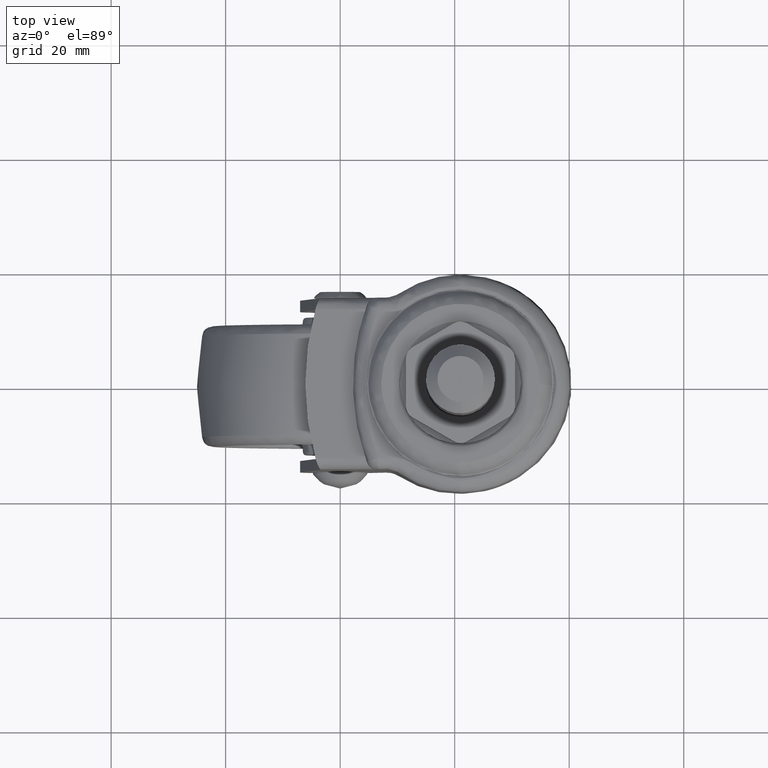
[diagram: clean part render]
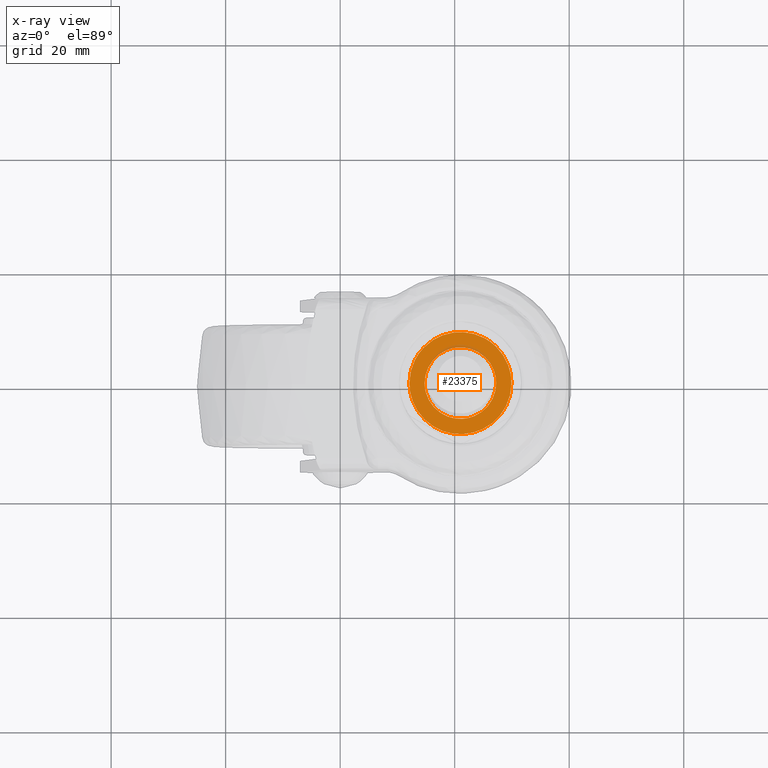
[diagram: x-ray — body ghosted, one internal face saturated and labeled with its STEP entity id]
A machine part, top view, then the same camera in x-ray: the body is ghosted and one INTERNAL B-rep face — a face not visible from any outside direction — is saturated and labeled: STEP entity #23375.
In plain terms, the highlighted face is a freeform B-spline surface patch.
Its self-contained STEP definition (entity closure, byte-faithful):
#20515=CARTESIAN_POINT('',(20.262285967287859,6.206309531915061,34.699997000000003));
#20516=VERTEX_POINT('',#20515);
#20522=CARTESIAN_POINT('',(27.250000000000000,1.421085E-014,34.699997000000003));
#20523=VERTEX_POINT('',#20522);
#20524=CARTESIAN_POINT('',(20.262285967287859,6.206309531915063,34.699996999999989));
#20525=CARTESIAN_POINT('',(20.629849185369281,6.250000000000014,34.699997000000003));
#20526=CARTESIAN_POINT('',(21.0,6.250000000000014,34.699997000000003));
#20527=CARTESIAN_POINT('',(27.250000000000000,6.250000000000014,34.699996999999996));
#20528=CARTESIAN_POINT('',(27.250000000000000,1.421085E-014,34.699997000000003));
#20536=(BOUNDED_CURVE()B_SPLINE_CURVE(2,(#20524,#20525,#20526,#20527,#20528),.UNSPECIFIED.,.F.,.U.)B_SPLINE_CURVE_WITH_KNOTS((3,2,3),(0.229562469915319,0.250000000000000,0.500000000000000),.UNSPECIFIED.)CURVE()GEOMETRIC_REPRESENTATION_ITEM()RATIONAL_B_SPLINE_CURVE((0.956026747131101,0.976055944115604,1.0,0.707106781186547,1.0))REPRESENTATION_ITEM(''));
#20537=EDGE_CURVE('',#20516,#20523,#20536,.T.);
#20539=CARTESIAN_POINT('',(21.381553372153260,-6.238342490132959,34.699997000000003));
#20540=VERTEX_POINT('',#20539);
#20541=CARTESIAN_POINT('',(27.250000000000000,1.421085E-014,34.699997000000003));
#20542=CARTESIAN_POINT('',(27.250000000000000,-5.879412918046532,34.699997000000010));
#20543=CARTESIAN_POINT('',(21.381553372153256,-6.238342490132960,34.699997000000010));
#20551=(BOUNDED_CURVE()B_SPLINE_CURVE(2,(#20541,#20542,#20543),.UNSPECIFIED.,.F.,.U.)B_SPLINE_CURVE_WITH_KNOTS((3,3),(0.500000000000000,0.739332962238628),.UNSPECIFIED.)CURVE()GEOMETRIC_REPRESENTATION_ITEM()RATIONAL_B_SPLINE_CURVE((1.0,0.719603993287080,0.976072041666042))REPRESENTATION_ITEM(''));
#20552=EDGE_CURVE('',#20523,#20540,#20551,.T.);
#20626=CARTESIAN_POINT('',(14.750000000000000,1.421085E-014,34.699997000000003));
#20627=VERTEX_POINT('',#20626);
#20628=CARTESIAN_POINT('',(21.381553372153267,-6.238342490132960,34.699997000000003));
#20629=CARTESIAN_POINT('',(21.190954770676754,-6.249999999999987,34.699997000000003));
#20630=CARTESIAN_POINT('',(21.0,-6.249999999999987,34.699997000000003));
#20631=CARTESIAN_POINT('',(14.750000000000007,-6.249999999999987,34.699996999999996));
#20632=CARTESIAN_POINT('',(14.750000000000000,1.421085E-014,34.699997000000003));
#20640=(BOUNDED_CURVE()B_SPLINE_CURVE(2,(#20628,#20629,#20630,#20631,#20632),.UNSPECIFIED.,.F.,.U.)B_SPLINE_CURVE_WITH_KNOTS((3,2,3),(0.739332962238627,0.750000000000000,1.0),.UNSPECIFIED.)CURVE()GEOMETRIC_REPRESENTATION_ITEM()RATIONAL_B_SPLINE_CURVE((0.976072041666040,0.987502787899467,1.0,0.707106781186547,1.0))REPRESENTATION_ITEM(''));
#20641=EDGE_CURVE('',#20540,#20627,#20640,.T.);
#20643=CARTESIAN_POINT('',(14.750000000000000,1.421085E-014,34.699997000000003));
#20644=CARTESIAN_POINT('',(14.750000000000009,5.551090668107082,34.699996999999996));
#20645=CARTESIAN_POINT('',(20.262285967287859,6.206309531915062,34.699996999999996));
#20653=(BOUNDED_CURVE()B_SPLINE_CURVE(2,(#20643,#20644,#20645),.UNSPECIFIED.,.F.,.U.)B_SPLINE_CURVE_WITH_KNOTS((3,3),(0.0,0.229562469915319),.UNSPECIFIED.)CURVE()GEOMETRIC_REPRESENTATION_ITEM()RATIONAL_B_SPLINE_CURVE((1.0,0.731050837070943,0.956026747131101))REPRESENTATION_ITEM(''));
#20654=EDGE_CURVE('',#20627,#20516,#20653,.T.);
#21185=CARTESIAN_POINT('',(14.580616412087281,6.181828213922753,34.699997000000003));
#21186=VERTEX_POINT('',#21185);
#21200=CARTESIAN_POINT('',(12.088014583038280,1.421085E-014,34.699997000000003));
#21201=VERTEX_POINT('',#21200);
#21202=CARTESIAN_POINT('',(12.088014583038280,1.421085E-014,34.699997000000003));
#21203=CARTESIAN_POINT('',(12.088014583038280,3.593440520229823,34.699997000000003));
#21204=CARTESIAN_POINT('',(14.580616412087274,6.181828213922753,34.699997000000010));
#21212=(BOUNDED_CURVE()B_SPLINE_CURVE(2,(#21202,#21203,#21204),.UNSPECIFIED.,.F.,.U.)B_SPLINE_CURVE_WITH_KNOTS((3,3),(0.0,0.122155737632389),.UNSPECIFIED.)CURVE()GEOMETRIC_REPRESENTATION_ITEM()RATIONAL_B_SPLINE_CURVE((1.0,0.856885651233272,0.853629213181573))REPRESENTATION_ITEM(''));
#21213=EDGE_CURVE('',#21201,#21186,#21212,.T.);
#21215=CARTESIAN_POINT('',(29.911985416961720,1.421085E-014,34.699997000000003));
#21216=VERTEX_POINT('',#21215);
#21217=CARTESIAN_POINT('',(29.911985416961720,1.421085E-014,34.699997000000003));
#21218=CARTESIAN_POINT('',(29.911985416961727,-8.911985416961707,34.699997000000003));
#21219=CARTESIAN_POINT('',(21.0,-8.911985416961706,34.699997000000003));
#21220=CARTESIAN_POINT('',(12.088014583038282,-8.911985416961707,34.699997000000003));
#21221=CARTESIAN_POINT('',(12.088014583038280,1.421085E-014,34.699997000000003));
#21229=(BOUNDED_CURVE()B_SPLINE_CURVE(2,(#21217,#21218,#21219,#21220,#21221),.UNSPECIFIED.,.F.,.U.)B_SPLINE_CURVE_WITH_KNOTS((3,2,3),(0.500000000000000,0.750000000000000,1.0),.UNSPECIFIED.)CURVE()GEOMETRIC_REPRESENTATION_ITEM()RATIONAL_B_SPLINE_CURVE((1.0,0.707106781186548,1.0,0.707106781186548,1.0))REPRESENTATION_ITEM(''));
#21230=EDGE_CURVE('',#21216,#21201,#21229,.T.);
#21232=CARTESIAN_POINT('',(27.181828213922739,6.419383587912737,34.699997000000010));
#21233=VERTEX_POINT('',#21232);
#21234=CARTESIAN_POINT('',(27.181828213922739,6.419383587912737,34.699997000000010));
#21235=CARTESIAN_POINT('',(29.911985416961720,3.790258308448786,34.699997000000003));
#21236=CARTESIAN_POINT('',(29.911985416961720,1.421085E-014,34.699997000000003));
#21244=(BOUNDED_CURVE()B_SPLINE_CURVE(2,(#21234,#21235,#21236),.UNSPECIFIED.,.F.,.U.)B_SPLINE_CURVE_WITH_KNOTS((3,3),(0.372155737632389,0.500000000000000),.UNSPECIFIED.)CURVE()GEOMETRIC_REPRESENTATION_ITEM()RATIONAL_B_SPLINE_CURVE((0.853629213181573,0.850221129953275,1.0))REPRESENTATION_ITEM(''));
#21245=EDGE_CURVE('',#21233,#21216,#21244,.T.);
#21282=CARTESIAN_POINT('',(14.580616412087284,6.181828213922752,34.699997000000003));
#21283=CARTESIAN_POINT('',(17.209741691551233,8.911985416961734,34.699997000000003));
#21284=CARTESIAN_POINT('',(21.0,8.911985416961734,34.699997000000003));
#21285=CARTESIAN_POINT('',(24.593440520229816,8.911985416961734,34.699996999999996));
#21286=CARTESIAN_POINT('',(27.181828213922746,6.419383587912738,34.699997000000018));
#21294=(BOUNDED_CURVE()B_SPLINE_CURVE(2,(#21282,#21283,#21284,#21285,#21286),.UNSPECIFIED.,.F.,.U.)B_SPLINE_CURVE_WITH_KNOTS((3,2,3),(0.122155737632389,0.250000000000000,0.372155737632389),.UNSPECIFIED.)CURVE()GEOMETRIC_REPRESENTATION_ITEM()RATIONAL_B_SPLINE_CURVE((0.853629213181573,0.850221129953275,1.0,0.856885651233272,0.853629213181573))REPRESENTATION_ITEM(''));
#21295=EDGE_CURVE('',#21186,#21233,#21294,.T.);
#23358=CARTESIAN_POINT('',(30.802292725569892,-9.802213645443361,34.699997000000003));
#23359=CARTESIAN_POINT('',(11.197706796353970,-9.802213645443361,34.699997000000003));
#23360=CARTESIAN_POINT('',(30.802292725569892,9.800630937703726,34.699997000000003));
#23361=CARTESIAN_POINT('',(11.197706796353970,9.800630937703726,34.699997000000003));
#23362=B_SPLINE_SURFACE_WITH_KNOTS('',1,1,((#23358,#23360),(#23359,#23361)),.UNSPECIFIED.,.F.,.F.,.U.,(2,2),(2,2),(0.0,19.604585929215919),(0.0,19.602844583147089),.UNSPECIFIED.);
#23363=ORIENTED_EDGE('',*,*,#21213,.T.);
#23364=ORIENTED_EDGE('',*,*,#21295,.T.);
#23365=ORIENTED_EDGE('',*,*,#21245,.T.);
#23366=ORIENTED_EDGE('',*,*,#21230,.T.);
#23367=EDGE_LOOP('',(#23363,#23364,#23365,#23366));
#23368=FACE_OUTER_BOUND('',#23367,.T.);
#23369=ORIENTED_EDGE('',*,*,#20552,.F.);
#23370=ORIENTED_EDGE('',*,*,#20537,.F.);
#23371=ORIENTED_EDGE('',*,*,#20654,.F.);
#23372=ORIENTED_EDGE('',*,*,#20641,.F.);
#23373=EDGE_LOOP('',(#23369,#23370,#23371,#23372));
#23374=FACE_BOUND('',#23373,.T.);
#23375=ADVANCED_FACE('',(#23368,#23374),#23362,.T.);